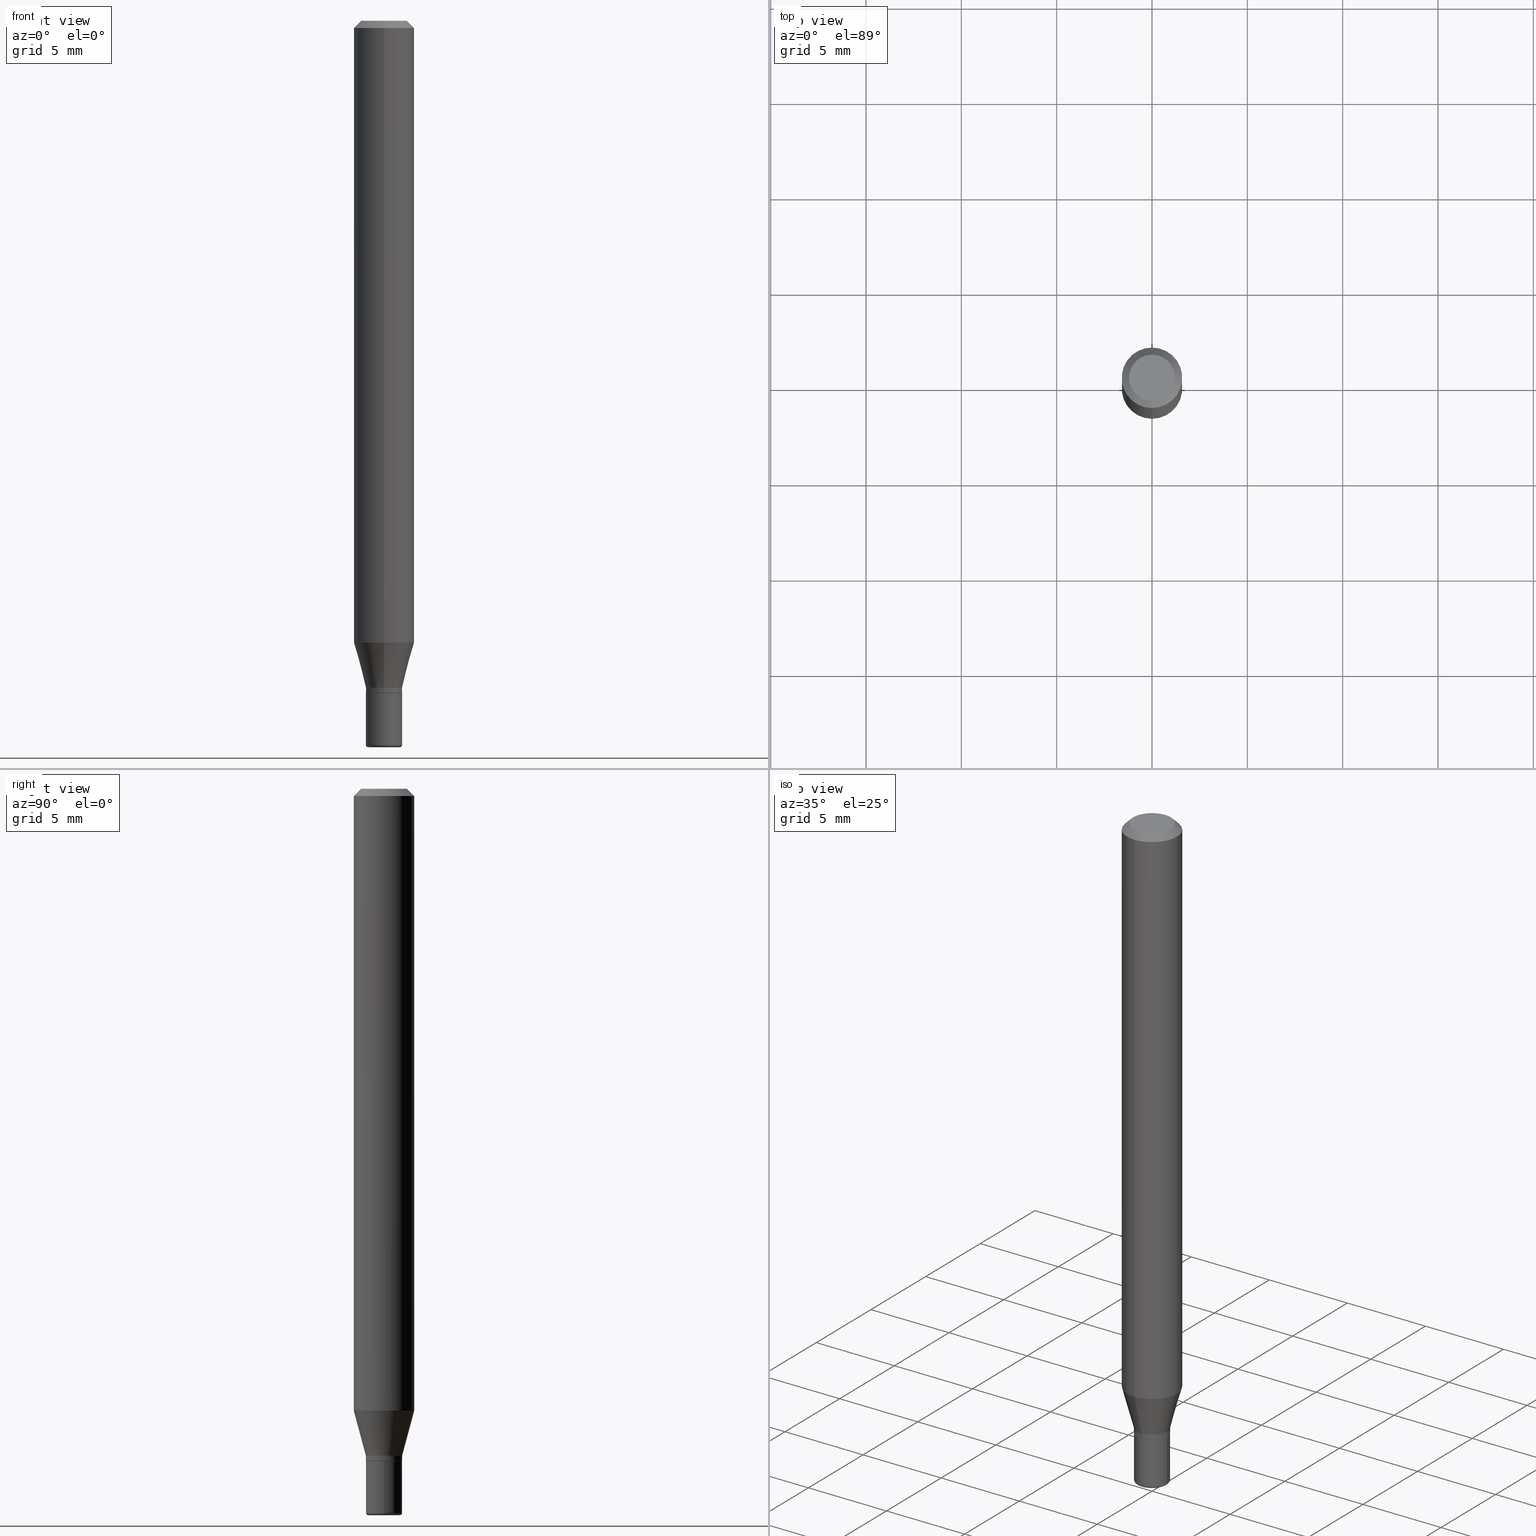
[diagram: canonical four-view strip — front | top / right | iso, engineering-drawing reading convention]
A machine part, canonical four-view strip (front | top / right | iso — engineering-drawing reading convention). The complete STEP part file that produces these views, byte-faithful:
ISO-10303-21;
HEADER;
FILE_DESCRIPTION (( 'STEP AP203' ),
    '1' );
FILE_NAME ('09036.STEP',
    '2024-02-29T21:29:25',
    ( '' ),
    ( '' ),
    'SwSTEP 2.0',
    'SolidWorks 2023',
    '' );
FILE_SCHEMA (( 'CONFIG_CONTROL_DESIGN' ));
ENDSEC;

DATA;
#1 = ORIENTED_EDGE ( 'NONE', *, *, #473, .F. ) ;
#2 = CARTESIAN_POINT ( 'NONE',  ( 0.000000000000000000, 0.000000000000000000, 0.000000000000000000 ) ) ;
#3 = DIRECTION ( 'NONE',  ( -6.982962677686265922E-15, -1.000000000000000000, 3.483106191921935554E-15 ) ) ;
#4 = AXIS2_PLACEMENT_3D ( 'NONE', #470, #281, #472 ) ;
#5 = MANIFOLD_SOLID_BREP ( 'Body-Move/Copy2[1]', #359 ) ;
#6 = ORIENTED_EDGE ( 'NONE', *, *, #368, .F. ) ;
#7 = DIRECTION ( 'NONE',  ( 6.982962677686265922E-15, 1.000000000000000000, -3.491449284820591431E-15 ) ) ;
#8 = EDGE_CURVE ( 'NONE', #216, #487, #374, .T. ) ;
#9 = DIRECTION ( 'NONE',  ( 1.000000000000000000, -6.982962677686268288E-15, 0.000000000000000000 ) ) ;
#10 = ORIENTED_EDGE ( 'NONE', *, *, #174, .T. ) ;
#11 = ORIENTED_EDGE ( 'NONE', *, *, #493, .F. ) ;
#12 = DIRECTION ( 'NONE',  ( -6.982962677686265922E-15, -1.000000000000000000, 0.000000000000000000 ) ) ;
#13 = VECTOR ( 'NONE', #271, 39.37007874015748143 ) ;
#14 = ADVANCED_FACE ( 'NONE', ( #123 ), #170, .T. ) ;
#15 = ORIENTED_EDGE ( 'NONE', *, *, #381, .T. ) ;
#16 = ADVANCED_FACE ( 'NONE', ( #497 ), #239, .T. ) ;
#17 = LINE ( 'NONE', #364, #312 ) ;
#18 = EDGE_CURVE ( 'NONE', #204, #457, #276, .T. ) ;
#19 = ORIENTED_EDGE ( 'NONE', *, *, #213, .F. ) ;
#20 = DIRECTION ( 'NONE',  ( 0.000000000000000000, 0.000000000000000000, 1.000000000000000000 ) ) ;
#21 = ORIENTED_EDGE ( 'NONE', *, *, #156, .T. ) ;
#22 = SECURITY_CLASSIFICATION_LEVEL ( 'unclassified' ) ;
#23 = CIRCLE ( 'NONE', #60, 0.03750000000000009576 ) ;
#24 = AXIS2_PLACEMENT_3D ( 'NONE', #214, #508, #382 ) ;
#25 = APPROVAL_DATE_TIME ( #500, #65 ) ;
#26 = DIRECTION ( 'NONE',  ( -6.982962677686265922E-15, -1.000000000000000000, 0.000000000000000000 ) ) ;
#27 = COORDINATED_UNIVERSAL_TIME_OFFSET ( 5, 0, .BEHIND. ) ;
#28 = DIRECTION ( 'NONE',  ( -6.982962677686265133E-15, -1.000000000000000000, 0.000000000000000000 ) ) ;
#29 = DIRECTION ( 'NONE',  ( -6.982962677686265922E-15, -1.000000000000000000, 3.491449284820591825E-15 ) ) ;
#30 = ORIENTED_EDGE ( 'NONE', *, *, #156, .F. ) ;
#31 = CIRCLE ( 'NONE', #498, 0.06250000000000000000 ) ;
#32 = LINE ( 'NONE', #338, #413 ) ;
#33 = ADVANCED_FACE ( 'NONE', ( #417 ), #372, .F. ) ;
#34 = CARTESIAN_POINT ( 'NONE',  ( 3.582686580359767159E-29, -5.359686688179454114E-15, -1.500000000000000444 ) ) ;
#35 = PERSON_AND_ORGANIZATION ( #303, #122 ) ;
#36 = AXIS2_PLACEMENT_3D ( 'NONE', #476, #300, #429 ) ;
#37 = ORIENTED_EDGE ( 'NONE', *, *, #306, .T. ) ;
#38 = LOCAL_TIME ( 16, 29, 25.00000000000000000, #291 ) ;
#39 = CARTESIAN_POINT ( 'NONE',  ( -4.287811248607203282E-16, -0.06250000000000005551, -0.01499999999999948597 ) ) ;
#40 = DIRECTION ( 'NONE',  ( -2.445491189389452753E-29, 3.491449284820591825E-15, 1.000000000000000000 ) ) ;
#41 = ORIENTED_EDGE ( 'NONE', *, *, #94, .T. ) ;
#42 = DIRECTION ( 'NONE',  ( -2.445491189389452753E-29, 3.491449284820591825E-15, 1.000000000000000000 ) ) ;
#43 = PRODUCT ( '09036', '09036', '', ( #326 ) ) ;
#44 =( LENGTH_UNIT ( ) NAMED_UNIT ( * ) SI_UNIT ( $, .METRE. ) );
#45 = AXIS2_PLACEMENT_3D ( 'NONE', #183, #42, #3 ) ;
#46 = EDGE_LOOP ( 'NONE', ( #330, #418, #1, #80 ) ) ;
#47 = LINE ( 'NONE', #162, #144 ) ;
#48 = ORIENTED_EDGE ( 'NONE', *, *, #381, .F. ) ;
#49 = CARTESIAN_POINT ( 'NONE',  ( 0.000000000000000000, 0.000000000000000000, 0.000000000000000000 ) ) ;
#50 = FACE_OUTER_BOUND ( 'NONE', #107, .T. ) ;
#51 = APPLICATION_CONTEXT ( 'configuration controlled 3d designs of mechanical parts and assemblies' ) ;
#52 = CIRCLE ( 'NONE', #121, 0.03749999999999999861 ) ;
#53 = LOCAL_TIME ( 16, 29, 25.00000000000000000, #117 ) ;
#54 = CC_DESIGN_APPROVAL ( #65, ( #230 ) ) ;
#55 = EDGE_LOOP ( 'NONE', ( #317, #146, #327, #164 ) ) ;
#56 = PERSON_AND_ORGANIZATION_ROLE ( 'creator' ) ;
#57 = DIRECTION ( 'NONE',  ( -6.982962677686265922E-15, -1.000000000000000000, 3.491449284820591431E-15 ) ) ;
#58 = ORIENTED_EDGE ( 'NONE', *, *, #292, .T. ) ;
#59 = DIRECTION ( 'NONE',  ( -2.445491189389452753E-29, 3.491449284820591825E-15, 1.000000000000000000 ) ) ;
#60 = AXIS2_PLACEMENT_3D ( 'NONE', #365, #82, #255 ) ;
#61 = CIRCLE ( 'NONE', #361, 0.03249999999999999417 ) ;
#62 = CYLINDRICAL_SURFACE ( 'NONE', #157, 0.06250000000000000000 ) ;
#63 = SHAPE_DEFINITION_REPRESENTATION ( #400, #222 ) ;
#64 = CYLINDRICAL_SURFACE ( 'NONE', #401, 0.03750000000000008882 ) ;
#65 = APPROVAL ( #284, 'UNSPECIFIED' ) ;
#66 = CC_DESIGN_PERSON_AND_ORGANIZATION_ASSIGNMENT ( #517, #133, ( #230 ) ) ;
#67 = CARTESIAN_POINT ( 'NONE',  ( 3.668236784084106875E-31, -5.237173927230783978E-17, -0.01499999999999970281 ) ) ;
#68 = CIRCLE ( 'NONE', #36, 0.03750000000000009576 ) ;
#69 = CIRCLE ( 'NONE', #362, 0.03249999999999999417 ) ;
#70 = DIRECTION ( 'NONE',  ( 6.982962677686265922E-15, 1.000000000000000000, -3.483106191921935554E-15 ) ) ;
#71 = CARTESIAN_POINT ( 'NONE',  ( -6.680672965038082494E-45, 9.538055564095452696E-31, 2.731832768003550085E-16 ) ) ;
#72 = ORIENTED_EDGE ( 'NONE', *, *, #437, .T. ) ;
#73 = DIRECTION ( 'NONE',  ( -4.851104656540966641E-15, -0.7071067811865503483, -0.7071067811865446862 ) ) ;
#74 = ORIENTED_EDGE ( 'NONE', *, *, #94, .F. ) ;
#75 = AXIS2_PLACEMENT_3D ( 'NONE', #67, #262, #70 ) ;
#76 = CARTESIAN_POINT ( 'NONE',  ( 3.840629472727447874E-16, 0.04750000000000000749, 1.073394357713768884E-16 ) ) ;
#77 = CARTESIAN_POINT ( 'NONE',  ( -2.618611004132355933E-16, -0.03750000000000008882, 1.309293481807724991E-16 ) ) ;
#78 = DIRECTION ( 'NONE',  ( 1.000000000000000000, -6.982962677686265922E-15, 4.876176775795935793E-29 ) ) ;
#79 = DIRECTION ( 'NONE',  ( -2.445468806185136597E-29, 3.491481338843145583E-15, 1.000000000000000000 ) ) ;
#80 = ORIENTED_EDGE ( 'NONE', *, *, #8, .F. ) ;
#81 = DIRECTION ( 'NONE',  ( 1.000000000000000000, 0.000000000000000000, 0.000000000000000000 ) ) ;
#82 = DIRECTION ( 'NONE',  ( -2.445491189389452753E-29, 3.491449284820591825E-15, 1.000000000000000000 ) ) ;
#83 = VERTEX_POINT ( 'NONE', #290 ) ;
#84 =( NAMED_UNIT ( * ) PLANE_ANGLE_UNIT ( ) SI_UNIT ( $, .RADIAN. ) );
#85 = CC_DESIGN_PERSON_AND_ORGANIZATION_ASSIGNMENT ( #315, #379, ( #230 ) ) ;
#86 = VERTEX_POINT ( 'NONE', #270 ) ;
#87 = DIRECTION ( 'NONE',  ( -2.445491189389452753E-29, 3.491449284820591825E-15, 1.000000000000000000 ) ) ;
#88 = APPROVAL_STATUS ( 'not_yet_approved' ) ;
#89 = APPLICATION_PROTOCOL_DEFINITION ( 'international standard', 'config_control_design', 1994, #51 ) ;
#90 = VECTOR ( 'NONE', #360, 39.37007874015748143 ) ;
#91 = AXIS2_PLACEMENT_3D ( 'NONE', #310, #234, #322 ) ;
#92 = ORIENTED_EDGE ( 'NONE', *, *, #437, .F. ) ;
#93 = PERSON_AND_ORGANIZATION ( #303, #122 ) ;
#94 = EDGE_CURVE ( 'NONE', #149, #83, #467, .T. ) ;
#95 = ORIENTED_EDGE ( 'NONE', *, *, #462, .T. ) ;
#96 = DIRECTION ( 'NONE',  ( -2.445468806185136597E-29, 3.491481338843145583E-15, 1.000000000000000000 ) ) ;
#97 = VERTEX_POINT ( 'NONE', #238 ) ;
#98 = DIRECTION ( 'NONE',  ( -2.445491189389452753E-29, 3.491449284820591825E-15, 1.000000000000000000 ) ) ;
#99 = APPROVAL_PERSON_ORGANIZATION ( #124, #151, #484 ) ;
#100 = ADVANCED_FACE ( 'NONE', ( #235 ), #385, .T. ) ;
#101 = FACE_OUTER_BOUND ( 'NONE', #332, .T. ) ;
#102 = CALENDAR_DATE ( 2024, 29, 2 ) ;
#103 = EDGE_CURVE ( 'NONE', #457, #448, #492, .T. ) ;
#104 = DIRECTION ( 'NONE',  ( 6.982962677686265922E-15, 1.000000000000000000, -3.483106191921935554E-15 ) ) ;
#105 = DIRECTION ( 'NONE',  ( -2.445491189389452753E-29, 3.491449284820591825E-15, 1.000000000000000000 ) ) ;
#106 = AXIS2_PLACEMENT_3D ( 'NONE', #116, #455, #287 ) ;
#107 = EDGE_LOOP ( 'NONE', ( #286, #15 ) ) ;
#108 = LINE ( 'NONE', #77, #263 ) ;
#109 = VERTEX_POINT ( 'NONE', #439 ) ;
#110 = CARTESIAN_POINT ( 'NONE',  ( 3.655975865246778562E-29, -5.219764601570502352E-15, -1.494999999999999662 ) ) ;
#111 = ORIENTED_EDGE ( 'NONE', *, *, #142, .F. ) ;
#112 = CYLINDRICAL_SURFACE ( 'NONE', #145, 0.03750000000000008882 ) ;
#113 = CIRCLE ( 'NONE', #488, 0.03750000000000008882 ) ;
#114 = CARTESIAN_POINT ( 'NONE',  ( 4.364351673553919652E-16, 0.06249999999999995143, -0.01499999999999992138 ) ) ;
#115 = DIRECTION ( 'NONE',  ( -2.438088387897960049E-29, 3.491481338843145188E-15, 1.000000000000000000 ) ) ;
#116 = CARTESIAN_POINT ( 'NONE',  ( 3.393119025277865852E-29, -4.844385882688571843E-15, -1.387500000000000178 ) ) ;
#117 = COORDINATED_UNIVERSAL_TIME_OFFSET ( 5, 0, .BEHIND. ) ;
#118 = ORIENTED_EDGE ( 'NONE', *, *, #323, .T. ) ;
#119 = CC_DESIGN_PERSON_AND_ORGANIZATION_ASSIGNMENT ( #35, #217, ( #305 ) ) ;
#120 = ORIENTED_EDGE ( 'NONE', *, *, #460, .F. ) ;
#121 = AXIS2_PLACEMENT_3D ( 'NONE', #282, #79, #9 ) ;
#122 = ORGANIZATION ( 'UNSPECIFIED', 'UNSPECIFIED', '' ) ;
#123 = FACE_OUTER_BOUND ( 'NONE', #366, .T. ) ;
#124 = PERSON_AND_ORGANIZATION ( #303, #122 ) ;
#125 = CARTESIAN_POINT ( 'NONE',  ( -4.364351673553916201E-16, -0.06250000000000000000, 2.182155803012869891E-16 ) ) ;
#126 = CARTESIAN_POINT ( 'NONE',  ( 0.000000000000000000, 0.000000000000000000, 0.000000000000000000 ) ) ;
#127 = CARTESIAN_POINT ( 'NONE',  ( 3.393119025277865852E-29, -4.844385882688571843E-15, -1.387500000000000178 ) ) ;
#128 = CALENDAR_DATE ( 2024, 29, 2 ) ;
#129 = CIRCLE ( 'NONE', #426, 0.03750000000000017902 ) ;
#130 = EDGE_CURVE ( 'NONE', #298, #414, #52, .T. ) ;
#131 = AXIS2_PLACEMENT_3D ( 'NONE', #339, #386, #176 ) ;
#132 = CONICAL_SURFACE ( 'NONE', #75, 0.06250000000000000000, 0.7853981633974488341 ) ;
#133 = PERSON_AND_ORGANIZATION_ROLE ( 'design_supplier' ) ;
#134 = DIRECTION ( 'NONE',  ( -2.445468806185136877E-29, 3.491481338843145188E-15, 1.000000000000000000 ) ) ;
#135 = CARTESIAN_POINT ( 'NONE',  ( -4.364351673553605094E-16, -0.06250000000000451028, -1.283698729810778483 ) ) ;
#136 = EDGE_CURVE ( 'NONE', #448, #86, #23, .T. ) ;
#137 = CARTESIAN_POINT ( 'NONE',  ( 3.655975865246779122E-29, -5.219764601570503141E-15, -1.495000000000000107 ) ) ;
#138 = VECTOR ( 'NONE', #357, 39.37007874015748854 ) ;
#139 = CARTESIAN_POINT ( 'NONE',  ( 0.000000000000000000, 0.000000000000000000, 0.000000000000000000 ) ) ;
#140 = FACE_OUTER_BOUND ( 'NONE', #474, .T. ) ;
#141 = LINE ( 'NONE', #351, #392 ) ;
#142 = EDGE_CURVE ( 'NONE', #97, #109, #47, .T. ) ;
#143 = CARTESIAN_POINT ( 'NONE',  ( 0.03249999999999999417, -5.446710888595306494E-15, -1.495000000000000107 ) ) ;
#144 = VECTOR ( 'NONE', #328, 39.37007874015748143 ) ;
#145 = AXIS2_PLACEMENT_3D ( 'NONE', #2, #275, #436 ) ;
#146 = ORIENTED_EDGE ( 'NONE', *, *, #103, .T. ) ;
#147 = LINE ( 'NONE', #39, #251 ) ;
#148 = DATE_AND_TIME ( #389, #252 ) ;
#149 = VERTEX_POINT ( 'NONE', #443 ) ;
#150 = CARTESIAN_POINT ( 'NONE',  ( 0.03750000000000008882, -2.618611004132355933E-16, 1.828566290923480126E-30 ) ) ;
#151 = APPROVAL ( #88, 'UNSPECIFIED' ) ;
#152 = CC_DESIGN_PERSON_AND_ORGANIZATION_ASSIGNMENT ( #405, #56, ( #459 ) ) ;
#153 = EDGE_LOOP ( 'NONE', ( #283, #58 ) ) ;
#154 = CARTESIAN_POINT ( 'NONE',  ( 2.664535259100711357E-16, 0.03749999999999511363, -1.387000000000000233 ) ) ;
#155 = AXIS2_PLACEMENT_3D ( 'NONE', #254, #87, #244 ) ;
#156 = EDGE_CURVE ( 'NONE', #227, #512, #420, .T. ) ;
#157 = AXIS2_PLACEMENT_3D ( 'NONE', #139, #218, #341 ) ;
#158 = DIRECTION ( 'NONE',  ( -2.445491189389452753E-29, 3.491449284820591825E-15, 1.000000000000000000 ) ) ;
#159 = ORIENTED_EDGE ( 'NONE', *, *, #516, .T. ) ;
#160 = DIRECTION ( 'NONE',  ( -4.937700262165053702E-15, -0.7071067811866175168, 0.7071067811864775177 ) ) ;
#161 = ORIENTED_EDGE ( 'NONE', *, *, #403, .T. ) ;
#162 = CARTESIAN_POINT ( 'NONE',  ( 4.440892098500625669E-16, 0.06250000000000000000, -2.182155803012869891E-16 ) ) ;
#163 =( NAMED_UNIT ( * ) SI_UNIT ( $, .STERADIAN. ) SOLID_ANGLE_UNIT ( ) );
#164 = ORIENTED_EDGE ( 'NONE', *, *, #408, .F. ) ;
#165 = TOROIDAL_SURFACE ( 'NONE', #453, 0.03249999999999999417, 0.005000000000000181383 ) ;
#166 = TOROIDAL_SURFACE ( 'NONE', #4, 0.03249999999999999417, 0.005000000000000181383 ) ;
#167 = ORIENTED_EDGE ( 'NONE', *, *, #211, .T. ) ;
#168 = PERSON_AND_ORGANIZATION ( #303, #122 ) ;
#169 = EDGE_LOOP ( 'NONE', ( #248, #394 ) ) ;
#170 = CONICAL_SURFACE ( 'NONE', #106, 0.03700000000000008837, 0.7853981633975507526 ) ;
#171 = CIRCLE ( 'NONE', #296, 0.04750000000000000749 ) ;
#172 = EDGE_LOOP ( 'NONE', ( #335, #321, #191, #6 ) ) ;
#173 = CARTESIAN_POINT ( 'NONE',  ( 0.03749999999999999861, -5.106291458058100676E-15, -1.387500000000000178 ) ) ;
#174 = EDGE_CURVE ( 'NONE', #329, #384, #344, .T. ) ;
#175 = APPROVAL_STATUS ( 'not_yet_approved' ) ;
#176 = DIRECTION ( 'NONE',  ( -6.982962677686265922E-15, -1.000000000000000000, 3.491449284820591825E-15 ) ) ;
#177 = EDGE_CURVE ( 'NONE', #86, #448, #68, .T. ) ;
#178 = COORDINATED_UNIVERSAL_TIME_OFFSET ( 5, 0, .BEHIND. ) ;
#179 = DIRECTION ( 'NONE',  ( 2.438088387897960049E-29, -3.491481338843145188E-15, -1.000000000000000000 ) ) ;
#180 = AXIS2_PLACEMENT_3D ( 'NONE', #143, #280, #409 ) ;
#181 = DIRECTION ( 'NONE',  ( 1.000000000000000000, -6.982962677686261189E-15, 4.883557194083111219E-29 ) ) ;
#182 = LINE ( 'NONE', #114, #277 ) ;
#183 = CARTESIAN_POINT ( 'NONE',  ( 3.668236784084106875E-31, -5.237173927230783978E-17, -0.01499999999999970281 ) ) ;
#184 = DIRECTION ( 'NONE',  ( -6.982962677686265133E-15, -1.000000000000000000, 0.000000000000000000 ) ) ;
#185 = AXIS2_PLACEMENT_3D ( 'NONE', #34, #115, #78 ) ;
#186 = ORIENTED_EDGE ( 'NONE', *, *, #292, .F. ) ;
#187 = CARTESIAN_POINT ( 'NONE',  ( -6.680672965038082494E-45, 9.538055564095452696E-31, 2.731832768003550085E-16 ) ) ;
#188 = ADVANCED_FACE ( 'NONE', ( #140 ), #165, .T. ) ;
#189 = ADVANCED_FACE ( 'NONE', ( #387 ), #478, .T. ) ;
#190 = CARTESIAN_POINT ( 'NONE',  ( -3.773273898774340269E-16, -0.04750000000000000749, 4.390271178293331409E-16 ) ) ;
#191 = ORIENTED_EDGE ( 'NONE', *, *, #358, .F. ) ;
#192 = DIRECTION ( 'NONE',  ( 1.000000000000000000, -6.982962677686261189E-15, 0.000000000000000000 ) ) ;
#193 = DIRECTION ( 'NONE',  ( -2.445491189389452753E-29, 3.491449284820591825E-15, 1.000000000000000000 ) ) ;
#194 = AXIS2_PLACEMENT_3D ( 'NONE', #510, #179, #264 ) ;
#195 = ORIENTED_EDGE ( 'NONE', *, *, #266, .F. ) ;
#196 = AXIS2_PLACEMENT_3D ( 'NONE', #345, #465, #104 ) ;
#197 = DIRECTION ( 'NONE',  ( -1.000000000000000000, 7.105427357601055501E-15, 0.000000000000000000 ) ) ;
#198 = ORIENTED_EDGE ( 'NONE', *, *, #266, .T. ) ;
#199 = APPROVAL_PERSON_ORGANIZATION ( #93, #65, #445 ) ;
#200 = CYLINDRICAL_SURFACE ( 'NONE', #241, 0.06250000000000000000 ) ;
#201 = EDGE_LOOP ( 'NONE', ( #416, #72, #243, #260 ) ) ;
#202 = DIRECTION ( 'NONE',  ( -6.982962677686265922E-15, -1.000000000000000000, 3.483106191921935554E-15 ) ) ;
#203 = EDGE_LOOP ( 'NONE', ( #324, #253, #378, #356 ) ) ;
#204 = VERTEX_POINT ( 'NONE', #461 ) ;
#205 = ORIENTED_EDGE ( 'NONE', *, *, #174, .F. ) ;
#206 = FACE_OUTER_BOUND ( 'NONE', #46, .T. ) ;
#207 = APPROVAL ( #175, 'UNSPECIFIED' ) ;
#208 = ORIENTED_EDGE ( 'NONE', *, *, #396, .T. ) ;
#209 = DIRECTION ( 'NONE',  ( -6.982962677686265922E-15, -1.000000000000000000, 3.491449284820591825E-15 ) ) ;
#210 = DESIGN_CONTEXT ( 'detailed design', #433, 'design' ) ;
#211 = EDGE_CURVE ( 'NONE', #384, #329, #294, .T. ) ;
#212 = PERSON_AND_ORGANIZATION ( #303, #122 ) ;
#213 = EDGE_CURVE ( 'NONE', #512, #83, #129, .T. ) ;
#214 = CARTESIAN_POINT ( 'NONE',  ( 3.393087968581877252E-29, -4.844430357644865674E-15, -1.387500000000000178 ) ) ;
#215 = VECTOR ( 'NONE', #464, 39.37007874015748143 ) ;
#216 = VERTEX_POINT ( 'NONE', #135 ) ;
#217 = PERSON_AND_ORGANIZATION_ROLE ( 'classification_officer' ) ;
#218 = DIRECTION ( 'NONE',  ( -2.445491189389452753E-29, 3.491449284820591825E-15, 1.000000000000000000 ) ) ;
#219 = FACE_OUTER_BOUND ( 'NONE', #201, .T. ) ;
#220 = APPROVAL_DATE_TIME ( #503, #207 ) ;
#221 = FACE_OUTER_BOUND ( 'NONE', #353, .T. ) ;
#222 = ADVANCED_BREP_SHAPE_REPRESENTATION ( '09036', ( #5, #349, #371 ), #507 ) ;
#223 = AXIS2_PLACEMENT_3D ( 'NONE', #380, #59, #29 ) ;
#224 = ADVANCED_FACE ( 'NONE', ( #265 ), #347, .F. ) ;
#225 = CYLINDRICAL_SURFACE ( 'NONE', #131, 0.03750000000000008882 ) ;
#226 = DIRECTION ( 'NONE',  ( -6.982962677686265133E-15, -1.000000000000000000, 3.491449284820591825E-15 ) ) ;
#227 = VERTEX_POINT ( 'NONE', #377 ) ;
#228 = CARTESIAN_POINT ( 'NONE',  ( -2.618611004132019681E-16, -0.03750000000000490441, -1.377000000000000446 ) ) ;
#229 = AXIS2_PLACEMENT_3D ( 'NONE', #302, #105, #26 ) ;
#230 = PRODUCT_DEFINITION_FORMATION_WITH_SPECIFIED_SOURCE ( 'ANY', '', #43, .NOT_KNOWN. ) ;
#231 = ORIENTED_EDGE ( 'NONE', *, *, #213, .T. ) ;
#232 = DIRECTION ( 'NONE',  ( -6.982962677686265922E-15, -1.000000000000000000, 0.000000000000000000 ) ) ;
#233 = EDGE_CURVE ( 'NONE', #97, #216, #31, .T. ) ;
#234 = DIRECTION ( 'NONE',  ( -2.445491189389452753E-29, 3.491449284820591825E-15, 1.000000000000000000 ) ) ;
#235 = FACE_OUTER_BOUND ( 'NONE', #172, .T. ) ;
#236 = DIRECTION ( 'NONE',  ( 7.105427357601001859E-15, 1.000000000000000000, -3.491481338843145583E-15 ) ) ;
#237 = CARTESIAN_POINT ( 'NONE',  ( 2.646771690706718205E-16, 0.03699999999999523809, -1.387500000000000178 ) ) ;
#238 = CARTESIAN_POINT ( 'NONE',  ( 4.440892098500937762E-16, 0.06249999999999548278, -1.283698729810779149 ) ) ;
#239 = CONICAL_SURFACE ( 'NONE', #311, 0.03700000000000008837, 0.7853981633975507526 ) ;
#240 = EDGE_LOOP ( 'NONE', ( #195, #231, #161, #186 ) ) ;
#241 = AXIS2_PLACEMENT_3D ( 'NONE', #49, #288, #209 ) ;
#242 = EDGE_LOOP ( 'NONE', ( #30, #208, #41, #19 ) ) ;
#243 = ORIENTED_EDGE ( 'NONE', *, *, #408, .T. ) ;
#244 = DIRECTION ( 'NONE',  ( -6.982962677686265922E-15, -1.000000000000000000, 0.000000000000000000 ) ) ;
#245 = CARTESIAN_POINT ( 'NONE',  ( 3.316907271900976589E-16, 0.04750000000000000749, -2.925220262880061582E-17 ) ) ;
#246 = CC_DESIGN_PERSON_AND_ORGANIZATION_ASSIGNMENT ( #168, #331, ( #43 ) ) ;
#247 = ADVANCED_FACE ( 'NONE', ( #221 ), #132, .T. ) ;
#248 = ORIENTED_EDGE ( 'NONE', *, *, #462, .F. ) ;
#249 = AXIS2_PLACEMENT_3D ( 'NONE', #355, #193, #12 ) ;
#250 = DATE_AND_TIME ( #451, #38 ) ;
#251 = VECTOR ( 'NONE', #73, 39.37007874015748143 ) ;
#252 = LOCAL_TIME ( 16, 29, 25.00000000000000000, #27 ) ;
#253 = ORIENTED_EDGE ( 'NONE', *, *, #136, .T. ) ;
#254 = CARTESIAN_POINT ( 'NONE',  ( 3.391896279683171704E-29, -4.842640158046162038E-15, -1.387000000000000233 ) ) ;
#255 = DIRECTION ( 'NONE',  ( -6.982962677686265922E-15, -1.000000000000000000, 0.000000000000000000 ) ) ;
#256 = ADVANCED_FACE ( 'NONE', ( #501 ), #225, .T. ) ;
#257 = ORIENTED_EDGE ( 'NONE', *, *, #18, .F. ) ;
#258 = UNCERTAINTY_MEASURE_WITH_UNIT (LENGTH_MEASURE( 1.000000000000000082E-05 ), #375, 'distance_accuracy_value', 'NONE');
#259 = DIRECTION ( 'NONE',  ( -2.445468806185136597E-29, 3.491481338843145583E-15, 1.000000000000000000 ) ) ;
#260 = ORIENTED_EDGE ( 'NONE', *, *, #136, .F. ) ;
#261 = AXIS2_PLACEMENT_3D ( 'NONE', #479, #236, #197 ) ;
#262 = DIRECTION ( 'NONE',  ( 2.445491189389452753E-29, -3.491449284820591825E-15, -1.000000000000000000 ) ) ;
#263 = VECTOR ( 'NONE', #316, 39.37007874015748143 ) ;
#264 = DIRECTION ( 'NONE',  ( -1.000000000000000000, 6.982962677686265922E-15, -4.876176775795935793E-29 ) ) ;
#265 = FACE_OUTER_BOUND ( 'NONE', #153, .T. ) ;
#266 = EDGE_CURVE ( 'NONE', #512, #414, #32, .T. ) ;
#267 = DIRECTION ( 'NONE',  ( -2.445491189389452753E-29, 3.491449284820591825E-15, 1.000000000000000000 ) ) ;
#268 = AXIS2_PLACEMENT_3D ( 'NONE', #410, #494, #57 ) ;
#269 = CIRCLE ( 'NONE', #91, 0.06250000000000000000 ) ;
#270 = CARTESIAN_POINT ( 'NONE',  ( -2.618611004132019681E-16, -0.03750000000000490441, -1.377000000000000446 ) ) ;
#271 = DIRECTION ( 'NONE',  ( -2.445468806185136877E-29, 3.491481338843145188E-15, 1.000000000000000000 ) ) ;
#272 = CC_DESIGN_DATE_AND_TIME_ASSIGNMENT ( #295, #456, ( #459 ) ) ;
#273 = DIRECTION ( 'NONE',  ( -2.445468806185136597E-29, 3.491481338843145583E-15, 1.000000000000000000 ) ) ;
#274 = ADVANCED_FACE ( 'NONE', ( #423 ), #64, .T. ) ;
#275 = DIRECTION ( 'NONE',  ( -2.445468806185136597E-29, 3.491481338843145583E-15, 1.000000000000000000 ) ) ;
#276 = CIRCLE ( 'NONE', #155, 0.03750000000000008882 ) ;
#277 = VECTOR ( 'NONE', #279, 39.37007874015748143 ) ;
#278 = CC_DESIGN_SECURITY_CLASSIFICATION ( #305, ( #230 ) ) ;
#279 = DIRECTION ( 'NONE',  ( 4.937700262164550409E-15, 0.7071067811865454633, -0.7071067811865495711 ) ) ;
#280 = DIRECTION ( 'NONE',  ( -6.982962677686266711E-15, -1.000000000000000000, 3.491481338843145583E-15 ) ) ;
#281 = DIRECTION ( 'NONE',  ( -2.445468806185136597E-29, 3.491481338843145583E-15, 1.000000000000000000 ) ) ;
#282 = CARTESIAN_POINT ( 'NONE',  ( 3.393087968581877252E-29, -4.844430357644865674E-15, -1.387500000000000178 ) ) ;
#283 = ORIENTED_EDGE ( 'NONE', *, *, #130, .T. ) ;
#284 = APPROVAL_STATUS ( 'not_yet_approved' ) ;
#285 = ORIENTED_EDGE ( 'NONE', *, *, #493, .T. ) ;
#286 = ORIENTED_EDGE ( 'NONE', *, *, #452, .T. ) ;
#287 = DIRECTION ( 'NONE',  ( -6.982962677686265133E-15, -1.000000000000000000, 0.000000000000000000 ) ) ;
#288 = DIRECTION ( 'NONE',  ( -2.445491189389452753E-29, 3.491449284820591825E-15, 1.000000000000000000 ) ) ;
#289 = ADVANCED_FACE ( 'NONE', ( #219 ), #308, .T. ) ;
#290 = CARTESIAN_POINT ( 'NONE',  ( 0.03750000000000017902, -5.481625701983738143E-15, -1.494999999999999662 ) ) ;
#291 = COORDINATED_UNIVERSAL_TIME_OFFSET ( 5, 0, .BEHIND. ) ;
#292 = EDGE_CURVE ( 'NONE', #414, #298, #427, .T. ) ;
#293 = ORIENTED_EDGE ( 'NONE', *, *, #452, .F. ) ;
#294 = CIRCLE ( 'NONE', #412, 0.03700000000000008837 ) ;
#295 = DATE_AND_TIME ( #128, #53 ) ;
#296 = AXIS2_PLACEMENT_3D ( 'NONE', #187, #158, #511 ) ;
#297 = LOCAL_TIME ( 16, 29, 25.00000000000000000, #178 ) ;
#298 = VERTEX_POINT ( 'NONE', #173 ) ;
#299 = CARTESIAN_POINT ( 'NONE',  ( 0.000000000000000000, 0.000000000000000000, 0.000000000000000000 ) ) ;
#300 = DIRECTION ( 'NONE',  ( -2.445491189389452753E-29, 3.491449284820591825E-15, 1.000000000000000000 ) ) ;
#301 = ADVANCED_FACE ( 'NONE', ( #504 ), #62, .T. ) ;
#302 = CARTESIAN_POINT ( 'NONE',  ( 3.367441367789276966E-29, -4.807725665197956479E-15, -1.377000000000000446 ) ) ;
#303 = PERSON ( 'UNSPECIFIED', 'UNSPECIFIED', 'UNSPECIFIED', ('UNSPECIFIED'), ('UNSPECIFIED'), ('UNSPECIFIED') ) ;
#304 = CARTESIAN_POINT ( 'NONE',  ( 2.629008122312715684E-16, 0.03699999999999523809, -1.387500000000000178 ) ) ;
#305 = SECURITY_CLASSIFICATION ( '', '', #22 ) ;
#306 = EDGE_CURVE ( 'NONE', #384, #457, #505, .T. ) ;
#307 = DATE_TIME_ROLE ( 'classification_date' ) ;
#308 = CYLINDRICAL_SURFACE ( 'NONE', #223, 0.03750000000000008882 ) ;
#309 = CARTESIAN_POINT ( 'NONE',  ( 3.139273933582690948E-29, -4.481969012122946098E-15, -1.283698729810778927 ) ) ;
#310 = CARTESIAN_POINT ( 'NONE',  ( 3.139273933582690948E-29, -4.481969012122946098E-15, -1.283698729810778927 ) ) ;
#311 = AXIS2_PLACEMENT_3D ( 'NONE', #127, #449, #444 ) ;
#312 = VECTOR ( 'NONE', #160, 39.37007874015748143 ) ;
#313 = ORIENTED_EDGE ( 'NONE', *, *, #130, .F. ) ;
#314 = ADVANCED_FACE ( 'NONE', ( #101 ), #454, .T. ) ;
#315 = PERSON_AND_ORGANIZATION ( #303, #122 ) ;
#316 = DIRECTION ( 'NONE',  ( -2.445491189389453033E-29, 3.491449284820591431E-15, 1.000000000000000000 ) ) ;
#317 = ORIENTED_EDGE ( 'NONE', *, *, #18, .T. ) ;
#318 = FACE_OUTER_BOUND ( 'NONE', #240, .T. ) ;
#319 = DIMENSIONAL_EXPONENTS ( 1.000000000000000000, 0.000000000000000000, 0.000000000000000000, 0.000000000000000000, 0.000000000000000000, 0.000000000000000000, 0.000000000000000000 ) ;
#320 = AXIS2_PLACEMENT_3D ( 'NONE', #110, #273, #192 ) ;
#321 = ORIENTED_EDGE ( 'NONE', *, *, #342, .T. ) ;
#322 = DIRECTION ( 'NONE',  ( -6.982962677686265922E-15, -1.000000000000000000, 4.370956789862821150E-15 ) ) ;
#323 = EDGE_CURVE ( 'NONE', #446, #487, #147, .T. ) ;
#324 = ORIENTED_EDGE ( 'NONE', *, *, #342, .F. ) ;
#325 = EDGE_LOOP ( 'NONE', ( #468, #198, #313, #402 ) ) ;
#326 = MECHANICAL_CONTEXT ( 'NONE', #51, 'mechanical' ) ;
#327 = ORIENTED_EDGE ( 'NONE', *, *, #177, .F. ) ;
#328 = DIRECTION ( 'NONE',  ( -2.445491189389453033E-29, 3.491449284820591431E-15, 1.000000000000000000 ) ) ;
#329 = VERTEX_POINT ( 'NONE', #390 ) ;
#330 = ORIENTED_EDGE ( 'NONE', *, *, #358, .T. ) ;
#331 = PERSON_AND_ORGANIZATION_ROLE ( 'design_owner' ) ;
#332 = EDGE_LOOP ( 'NONE', ( #430, #293, #432, #285 ) ) ;
#333 = DIRECTION ( 'NONE',  ( -2.445491189389453033E-29, 3.491449284820591431E-15, 1.000000000000000000 ) ) ;
#334 = APPLICATION_PROTOCOL_DEFINITION ( 'international standard', 'config_control_design', 1994, #433 ) ;
#335 = ORIENTED_EDGE ( 'NONE', *, *, #177, .T. ) ;
#336 = COORDINATED_UNIVERSAL_TIME_OFFSET ( 5, 0, .BEHIND. ) ;
#337 = ADVANCED_FACE ( 'NONE', ( #477 ), #166, .T. ) ;
#338 = CARTESIAN_POINT ( 'NONE',  ( -0.03750000000000008882, 2.664535259100382008E-16, -1.844600658845594012E-30 ) ) ;
#339 = CARTESIAN_POINT ( 'NONE',  ( 0.000000000000000000, 0.000000000000000000, 0.000000000000000000 ) ) ;
#340 = APPROVAL_ROLE ( '' ) ;
#341 = DIRECTION ( 'NONE',  ( -6.982962677686265922E-15, -1.000000000000000000, 3.491449284820591825E-15 ) ) ;
#342 = EDGE_CURVE ( 'NONE', #448, #97, #141, .T. ) ;
#343 = EDGE_CURVE ( 'NONE', #83, #512, #346, .T. ) ;
#344 = CIRCLE ( 'NONE', #370, 0.03700000000000008837 ) ;
#345 = CARTESIAN_POINT ( 'NONE',  ( 3.668236784084106875E-31, -5.237173927230783978E-17, -0.01499999999999970281 ) ) ;
#346 = CIRCLE ( 'NONE', #320, 0.03750000000000017902 ) ;
#347 = PLANE ( 'NONE',  #194 ) ;
#348 = PLANE ( 'NONE',  #185 ) ;
#349 = MANIFOLD_SOLID_BREP ( 'Body-Move/Copy2[2]', #506 ) ;
#350 = ORIENTED_EDGE ( 'NONE', *, *, #211, .F. ) ;
#351 = CARTESIAN_POINT ( 'NONE',  ( 2.664535259100718753E-16, 0.03749999999999528710, -1.377000000000000446 ) ) ;
#352 = DIRECTION ( 'NONE',  ( 1.000000000000000000, -6.982962677686259611E-15, 0.000000000000000000 ) ) ;
#353 = EDGE_LOOP ( 'NONE', ( #48, #118, #398, #120 ) ) ;
#354 = CARTESIAN_POINT ( 'NONE',  ( 3.668203209277706016E-29, -5.237222008264719754E-15, -1.500000000000000444 ) ) ;
#355 = CARTESIAN_POINT ( 'NONE',  ( 3.367441367789276966E-29, -4.807725665197956479E-15, -1.377000000000000446 ) ) ;
#356 = ORIENTED_EDGE ( 'NONE', *, *, #233, .F. ) ;
#357 = DIRECTION ( 'NONE',  ( -1.807323732225325406E-15, -0.2588190451025175198, 0.9659258262890690894 ) ) ;
#358 = EDGE_CURVE ( 'NONE', #216, #97, #269, .T. ) ;
#359 = CLOSED_SHELL ( 'NONE', ( #188, #274, #224, #435, #337, #383 ) ) ;
#360 = DIRECTION ( 'NONE',  ( -2.445491189389453033E-29, 3.491449284820591431E-15, 1.000000000000000000 ) ) ;
#361 = AXIS2_PLACEMENT_3D ( 'NONE', #440, #388, #397 ) ;
#362 = AXIS2_PLACEMENT_3D ( 'NONE', #354, #481, #352 ) ;
#363 = CARTESIAN_POINT ( 'NONE',  ( 3.393119025277865852E-29, -4.844385882688571843E-15, -1.387500000000000178 ) ) ;
#364 = CARTESIAN_POINT ( 'NONE',  ( -2.583696190743585172E-16, -0.03700000000000493172, -1.387500000000000178 ) ) ;
#365 = CARTESIAN_POINT ( 'NONE',  ( 3.367441367789276966E-29, -4.807725665197956479E-15, -1.377000000000000446 ) ) ;
#366 = EDGE_LOOP ( 'NONE', ( #509, #167, #159, #92 ) ) ;
#367 = CARTESIAN_POINT ( 'NONE',  ( -0.03750000000000017902, -4.765643953697645024E-15, -1.494999999999999662 ) ) ;
#368 = EDGE_CURVE ( 'NONE', #86, #216, #434, .T. ) ;
#369 = VERTEX_POINT ( 'NONE', #76 ) ;
#370 = AXIS2_PLACEMENT_3D ( 'NONE', #363, #482, #184 ) ;
#371 = AXIS2_PLACEMENT_3D ( 'NONE', #126, #20, #81 ) ;
#372 = PLANE ( 'NONE',  #268 ) ;
#373 = DIRECTION ( 'NONE',  ( 2.445491189389452753E-29, -3.491449284820591431E-15, -1.000000000000000000 ) ) ;
#374 = LINE ( 'NONE', #125, #391 ) ;
#375 =( CONVERSION_BASED_UNIT ( 'INCH', #407 ) LENGTH_UNIT ( ) NAMED_UNIT ( #319 ) );
#376 = AXIS2_PLACEMENT_3D ( 'NONE', #71, #40, #226 ) ;
#377 = CARTESIAN_POINT ( 'NONE',  ( -0.03249999999999999417, -4.979803347401575373E-15, -1.500000000000000444 ) ) ;
#378 = ORIENTED_EDGE ( 'NONE', *, *, #368, .T. ) ;
#379 = PERSON_AND_ORGANIZATION_ROLE ( 'creator' ) ;
#380 = CARTESIAN_POINT ( 'NONE',  ( 0.000000000000000000, 0.000000000000000000, 0.000000000000000000 ) ) ;
#381 = EDGE_CURVE ( 'NONE', #446, #369, #171, .T. ) ;
#382 = DIRECTION ( 'NONE',  ( 1.000000000000000000, -6.982962677686268288E-15, 0.000000000000000000 ) ) ;
#383 = ADVANCED_FACE ( 'NONE', ( #441 ), #348, .F. ) ;
#384 = VERTEX_POINT ( 'NONE', #237 ) ;
#385 = CONICAL_SURFACE ( 'NONE', #249, 0.03750000000000009576, 0.2617993877991495744 ) ;
#386 = DIRECTION ( 'NONE',  ( -2.445491189389452753E-29, 3.491449284820591825E-15, 1.000000000000000000 ) ) ;
#387 = FACE_OUTER_BOUND ( 'NONE', #203, .T. ) ;
#388 = DIRECTION ( 'NONE',  ( -2.445468806185136597E-29, 3.491481338843145583E-15, 1.000000000000000000 ) ) ;
#389 = CALENDAR_DATE ( 2024, 29, 2 ) ;
#390 = CARTESIAN_POINT ( 'NONE',  ( -2.583696190743585172E-16, -0.03700000000000493172, -1.387500000000000178 ) ) ;
#391 = VECTOR ( 'NONE', #333, 39.37007874015748143 ) ;
#392 = VECTOR ( 'NONE', #514, 39.37007874015748854 ) ;
#393 = LOCAL_TIME ( 16, 29, 25.00000000000000000, #336 ) ;
#394 = ORIENTED_EDGE ( 'NONE', *, *, #396, .F. ) ;
#395 = CARTESIAN_POINT ( 'NONE',  ( 3.552713678800830476E-16, 0.03749999999999528710, -1.377000000000000446 ) ) ;
#396 = EDGE_CURVE ( 'NONE', #227, #149, #69, .T. ) ;
#397 = DIRECTION ( 'NONE',  ( 1.000000000000000000, -6.982962677686259611E-15, 0.000000000000000000 ) ) ;
#398 = ORIENTED_EDGE ( 'NONE', *, *, #473, .T. ) ;
#399 = DIRECTION ( 'NONE',  ( -2.445491189389452753E-29, 3.491449284820591825E-15, 1.000000000000000000 ) ) ;
#400 = PRODUCT_DEFINITION_SHAPE ( 'NONE', 'NONE',  #459 ) ;
#401 = AXIS2_PLACEMENT_3D ( 'NONE', #299, #458, #419 ) ;
#402 = ORIENTED_EDGE ( 'NONE', *, *, #403, .F. ) ;
#403 = EDGE_CURVE ( 'NONE', #83, #298, #518, .T. ) ;
#404 = ORIENTED_EDGE ( 'NONE', *, *, #343, .F. ) ;
#405 = PERSON_AND_ORGANIZATION ( #303, #122 ) ;
#406 = ORIENTED_EDGE ( 'NONE', *, *, #8, .T. ) ;
#407 = LENGTH_MEASURE_WITH_UNIT ( LENGTH_MEASURE( 0.02539999999999999897 ), #44 );
#408 = EDGE_CURVE ( 'NONE', #204, #86, #108, .T. ) ;
#409 = DIRECTION ( 'NONE',  ( 1.000000000000000000, -6.982962677686273810E-15, 0.000000000000000000 ) ) ;
#410 = CARTESIAN_POINT ( 'NONE',  ( 3.393119025277865852E-29, -4.844385882688571843E-15, -1.387500000000000178 ) ) ;
#411 = DIRECTION ( 'NONE',  ( -2.445491189389452753E-29, 3.491449284820591825E-15, 1.000000000000000000 ) ) ;
#412 = AXIS2_PLACEMENT_3D ( 'NONE', #466, #267, #28 ) ;
#413 = VECTOR ( 'NONE', #134, 39.37007874015748143 ) ;
#414 = VERTEX_POINT ( 'NONE', #475 ) ;
#415 = APPROVAL_DATE_TIME ( #250, #151 ) ;
#416 = ORIENTED_EDGE ( 'NONE', *, *, #103, .F. ) ;
#417 = FACE_OUTER_BOUND ( 'NONE', #483, .T. ) ;
#418 = ORIENTED_EDGE ( 'NONE', *, *, #142, .T. ) ;
#419 = DIRECTION ( 'NONE',  ( 1.000000000000000000, -6.982962677686265922E-15, 4.876176775795935232E-29 ) ) ;
#420 = CIRCLE ( 'NONE', #261, 0.005000000000000181383 ) ;
#421 = AXIS2_PLACEMENT_3D ( 'NONE', #491, #411, #202 ) ;
#422 = CALENDAR_DATE ( 2024, 29, 2 ) ;
#423 = FACE_OUTER_BOUND ( 'NONE', #325, .T. ) ;
#424 = CARTESIAN_POINT ( 'NONE',  ( 3.655975865246778562E-29, -5.219764601570502352E-15, -1.494999999999999662 ) ) ;
#425 = DIRECTION ( 'NONE',  ( -6.982962677686265922E-15, -1.000000000000000000, 4.370956789862821150E-15 ) ) ;
#426 = AXIS2_PLACEMENT_3D ( 'NONE', #424, #259, #428 ) ;
#427 = CIRCLE ( 'NONE', #24, 0.03749999999999999861 ) ;
#428 = DIRECTION ( 'NONE',  ( 1.000000000000000000, -6.982962677686261189E-15, 0.000000000000000000 ) ) ;
#429 = DIRECTION ( 'NONE',  ( -6.982962677686265922E-15, -1.000000000000000000, 0.000000000000000000 ) ) ;
#430 = ORIENTED_EDGE ( 'NONE', *, *, #323, .F. ) ;
#431 = CARTESIAN_POINT ( 'NONE',  ( 3.391896279683171704E-29, -4.842640158046162038E-15, -1.387000000000000233 ) ) ;
#432 = ORIENTED_EDGE ( 'NONE', *, *, #460, .T. ) ;
#433 = APPLICATION_CONTEXT ( 'configuration controlled 3d designs of mechanical parts and assemblies' ) ;
#434 = LINE ( 'NONE', #228, #138 ) ;
#435 = ADVANCED_FACE ( 'NONE', ( #318 ), #112, .T. ) ;
#436 = DIRECTION ( 'NONE',  ( 1.000000000000000000, -6.982962677686265922E-15, 4.876176775795935232E-29 ) ) ;
#437 = EDGE_CURVE ( 'NONE', #457, #204, #113, .T. ) ;
#438 = CIRCLE ( 'NONE', #421, 0.06250000000000000000 ) ;
#439 = CARTESIAN_POINT ( 'NONE',  ( 4.440892098500941706E-16, 0.06249999999999995143, -0.01499999999999992138 ) ) ;
#440 = CARTESIAN_POINT ( 'NONE',  ( 3.668203209277706016E-29, -5.237222008264719754E-15, -1.500000000000000444 ) ) ;
#441 = FACE_OUTER_BOUND ( 'NONE', #169, .T. ) ;
#442 = ORIENTED_EDGE ( 'NONE', *, *, #516, .F. ) ;
#443 = CARTESIAN_POINT ( 'NONE',  ( 0.03249999999999999417, -5.464168295289523107E-15, -1.500000000000000444 ) ) ;
#444 = DIRECTION ( 'NONE',  ( -6.982962677686265133E-15, -1.000000000000000000, 0.000000000000000000 ) ) ;
#445 = APPROVAL_ROLE ( '' ) ;
#446 = VERTEX_POINT ( 'NONE', #190 ) ;
#447 = PLANE ( 'NONE',  #513 ) ;
#448 = VERTEX_POINT ( 'NONE', #395 ) ;
#449 = DIRECTION ( 'NONE',  ( -2.445491189389452753E-29, 3.491449284820591825E-15, 1.000000000000000000 ) ) ;
#450 = CARTESIAN_POINT ( 'NONE',  ( -4.364351673553912750E-16, -0.06250000000000005551, -0.01499999999999948597 ) ) ;
#451 = CALENDAR_DATE ( 2024, 29, 2 ) ;
#452 = EDGE_CURVE ( 'NONE', #369, #446, #469, .T. ) ;
#453 = AXIS2_PLACEMENT_3D ( 'NONE', #137, #96, #181 ) ;
#454 = CONICAL_SURFACE ( 'NONE', #196, 0.06250000000000000000, 0.7853981633974488341 ) ;
#455 = DIRECTION ( 'NONE',  ( -2.445491189389452753E-29, 3.491449284820591825E-15, 1.000000000000000000 ) ) ;
#456 = DATE_TIME_ROLE ( 'creation_date' ) ;
#457 = VERTEX_POINT ( 'NONE', #154 ) ;
#458 = DIRECTION ( 'NONE',  ( -2.445468806185136597E-29, 3.491481338843145583E-15, 1.000000000000000000 ) ) ;
#459 = PRODUCT_DEFINITION ( 'UNKNOWN', '', #230, #210 ) ;
#460 = EDGE_CURVE ( 'NONE', #369, #109, #182, .T. ) ;
#461 = CARTESIAN_POINT ( 'NONE',  ( -2.618611004132025597E-16, -0.03750000000000505707, -1.387000000000000233 ) ) ;
#462 = EDGE_CURVE ( 'NONE', #149, #227, #61, .T. ) ;
#463 = CC_DESIGN_APPROVAL ( #151, ( #459 ) ) ;
#464 = DIRECTION ( 'NONE',  ( 5.024295867788576727E-15, 0.7071067811866224018, 0.7071067811864726327 ) ) ;
#465 = DIRECTION ( 'NONE',  ( 2.445491189389452753E-29, -3.491449284820591825E-15, -1.000000000000000000 ) ) ;
#466 = CARTESIAN_POINT ( 'NONE',  ( 3.393119025277865852E-29, -4.844385882688571843E-15, -1.387500000000000178 ) ) ;
#467 = CIRCLE ( 'NONE', #180, 0.005000000000000181383 ) ;
#468 = ORIENTED_EDGE ( 'NONE', *, *, #343, .T. ) ;
#469 = CIRCLE ( 'NONE', #376, 0.04750000000000000749 ) ;
#470 = CARTESIAN_POINT ( 'NONE',  ( 3.655975865246779122E-29, -5.219764601570503141E-15, -1.495000000000000107 ) ) ;
#471 = EDGE_LOOP ( 'NONE', ( #10, #37, #257, #442 ) ) ;
#472 = DIRECTION ( 'NONE',  ( 1.000000000000000000, -6.982962677686261189E-15, 4.883557194083111219E-29 ) ) ;
#473 = EDGE_CURVE ( 'NONE', #487, #109, #499, .T. ) ;
#474 = EDGE_LOOP ( 'NONE', ( #95, #21, #404, #74 ) ) ;
#475 = CARTESIAN_POINT ( 'NONE',  ( -0.03749999999999999861, -4.765643953697646601E-15, -1.387500000000000178 ) ) ;
#476 = CARTESIAN_POINT ( 'NONE',  ( 3.367441367789276966E-29, -4.807725665197956479E-15, -1.377000000000000446 ) ) ;
#477 = FACE_OUTER_BOUND ( 'NONE', #242, .T. ) ;
#478 = CONICAL_SURFACE ( 'NONE', #229, 0.03750000000000009576, 0.2617993877991495744 ) ;
#479 = CARTESIAN_POINT ( 'NONE',  ( -0.03249999999999999417, -4.988838212448470770E-15, -1.495000000000000107 ) ) ;
#480 = ORIENTED_EDGE ( 'NONE', *, *, #233, .T. ) ;
#481 = DIRECTION ( 'NONE',  ( -2.445468806185136597E-29, 3.491481338843145583E-15, 1.000000000000000000 ) ) ;
#482 = DIRECTION ( 'NONE',  ( -2.445491189389452753E-29, 3.491449284820591825E-15, 1.000000000000000000 ) ) ;
#483 = EDGE_LOOP ( 'NONE', ( #205, #350 ) ) ;
#484 = APPROVAL_ROLE ( '' ) ;
#485 = ADVANCED_FACE ( 'NONE', ( #206 ), #200, .T. ) ;
#486 = CARTESIAN_POINT ( 'NONE',  ( 2.664535259100382008E-16, 0.03750000000000008882, -1.309293481807724991E-16 ) ) ;
#487 = VERTEX_POINT ( 'NONE', #450 ) ;
#488 = AXIS2_PLACEMENT_3D ( 'NONE', #431, #399, #232 ) ;
#489 = APPROVAL_PERSON_ORGANIZATION ( #212, #207, #340 ) ;
#490 = EDGE_LOOP ( 'NONE', ( #111, #480, #406, #11 ) ) ;
#491 = CARTESIAN_POINT ( 'NONE',  ( 3.668236784084106875E-31, -5.237173927230783978E-17, -0.01499999999999970281 ) ) ;
#492 = LINE ( 'NONE', #486, #90 ) ;
#493 = EDGE_CURVE ( 'NONE', #109, #487, #438, .T. ) ;
#494 = DIRECTION ( 'NONE',  ( -2.445491189389452753E-29, 3.491449284820591431E-15, 1.000000000000000000 ) ) ;
#495 = CC_DESIGN_DATE_AND_TIME_ASSIGNMENT ( #148, #307, ( #305 ) ) ;
#496 = ADVANCED_FACE ( 'NONE', ( #50 ), #447, .F. ) ;
#497 = FACE_OUTER_BOUND ( 'NONE', #471, .T. ) ;
#498 = AXIS2_PLACEMENT_3D ( 'NONE', #309, #98, #425 ) ;
#499 = CIRCLE ( 'NONE', #45, 0.06250000000000000000 ) ;
#500 = DATE_AND_TIME ( #102, #297 ) ;
#501 = FACE_OUTER_BOUND ( 'NONE', #55, .T. ) ;
#502 = PRODUCT_RELATED_PRODUCT_CATEGORY ( 'detail', '', ( #43 ) ) ;
#503 = DATE_AND_TIME ( #422, #393 ) ;
#504 = FACE_OUTER_BOUND ( 'NONE', #490, .T. ) ;
#505 = LINE ( 'NONE', #304, #215 ) ;
#506 = CLOSED_SHELL ( 'NONE', ( #256, #16, #247, #485, #100, #189, #301, #314, #496, #33, #14, #289 ) ) ;
#507 =( GEOMETRIC_REPRESENTATION_CONTEXT ( 3 ) GLOBAL_UNCERTAINTY_ASSIGNED_CONTEXT ( ( #258 ) ) GLOBAL_UNIT_ASSIGNED_CONTEXT ( ( #375, #84, #163 ) ) REPRESENTATION_CONTEXT ( 'NONE', 'WORKASPACE' ) );
#508 = DIRECTION ( 'NONE',  ( -2.445468806185136597E-29, 3.491481338843145583E-15, 1.000000000000000000 ) ) ;
#509 = ORIENTED_EDGE ( 'NONE', *, *, #306, .F. ) ;
#510 = CARTESIAN_POINT ( 'NONE',  ( 2.618611004132689227E-16, 0.03749999999999515526, -1.387500000000000178 ) ) ;
#511 = DIRECTION ( 'NONE',  ( -6.982962677686265133E-15, -1.000000000000000000, 3.491449284820591825E-15 ) ) ;
#512 = VERTEX_POINT ( 'NONE', #367 ) ;
#513 = AXIS2_PLACEMENT_3D ( 'NONE', #245, #373, #7 ) ;
#514 = DIRECTION ( 'NONE',  ( 1.839019923739595582E-15, 0.2588190451025242922, 0.9659258262890673130 ) ) ;
#515 = CC_DESIGN_APPROVAL ( #207, ( #305 ) ) ;
#516 = EDGE_CURVE ( 'NONE', #329, #204, #17, .T. ) ;
#517 = PERSON_AND_ORGANIZATION ( #303, #122 ) ;
#518 = LINE ( 'NONE', #150, #13 ) ;
ENDSEC;
END-ISO-10303-21;
